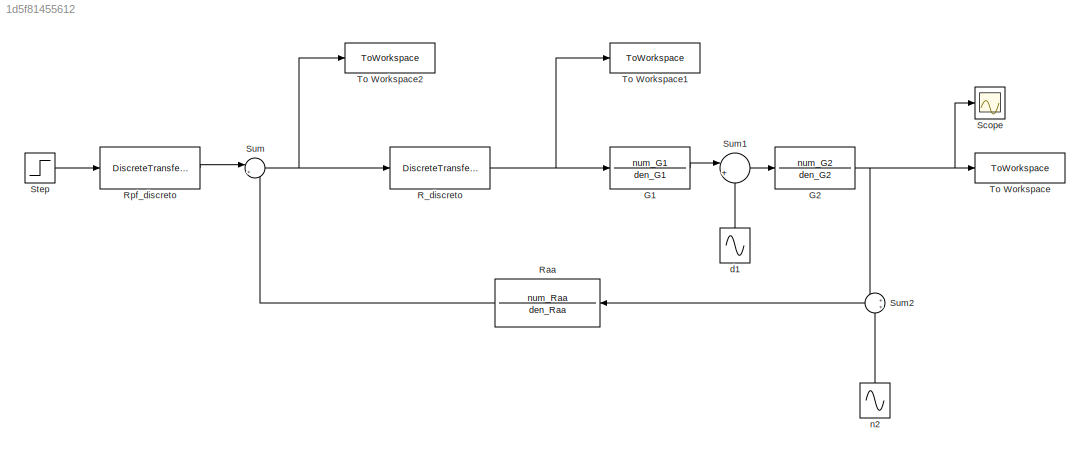
MODEL slx_1d5f81455612
KIND model
CONFIG AbsTol = auto
CONFIG EnableMultiTasking = off
CONFIG FixedStep = auto
CONFIG MaxStep = auto
CONFIG MinStep = auto
CONFIG RelTol = 1e-3
CONFIG SampleTimeConstraint = Unconstrained
CONFIG Solver = VariableStepAuto
CONFIG SolverName = VariableStepAuto
CONFIG StartTime = 0.0
CONFIG StopTime = 10
BLOCK [TransferFcn] G1 
  Denominator = den_G1
  Numerator = num_G1
BLOCK [TransferFcn] G2
  Denominator = den_G2
  Numerator = num_G2
BLOCK [DiscreteTransferFcn] R_discreto 
  Denominator = DENd
  InputPortMap = u0
  Numerator = NUMd
  Ports = [1, 1]
  SampleTime = Ts
BLOCK [TransferFcn] Raa
  Denominator = den_Raa
  Numerator = num_Raa
BLOCK [DiscreteTransferFcn] Rpf_discreto 
  Denominator = DENpf
  InputPortMap = u0
  Numerator = NUMpf
  Ports = [1, 1]
  SampleTime = Ts
BLOCK [Scope] Scope
  Floating = off
  NumInputPorts = 1
  Ports = [1]
  ScopeSpecificationString = Simulink.scopes.TimeScopeBlockCfg('CurrentConfiguration', extmgr.ConfigurationSet(extmgr.Configuration('Core','General UI',true),extmgr.Configuration('Core','Source UI',true),extmgr.Configuration('Sources','WiredSimulink',true),extmgr.Configuration('Visuals','Time Domain',true,'SerializedDisplays',{struct('MinYLimReal','-0.19212','MaxYLimReal','1.7291','YLabelReal','','MinYLimMag','0.00000','MaxYL...<+1345ch>
BLOCK [Step] Step
  After = 1.5
  SampleTime = 0
  Time = 0
BLOCK [Sum] Sum
  IconShape = round
  InputSameDT = off
  Inputs = |+-
  OutDataTypeStr = Inherit: Inherit via internal rule
  Ports = [2, 1]
  SaturateOnIntegerOverflow = off
BLOCK [Sum] Sum1
  IconShape = round
  InputSameDT = off
  Inputs = |++
  OutDataTypeStr = Inherit: Inherit via internal rule
  Ports = [2, 1]
  SaturateOnIntegerOverflow = off
BLOCK [Sum] Sum2
  IconShape = round
  InputSameDT = off
  OutDataTypeStr = Inherit: Inherit via internal rule
  Ports = [2, 1]
  SaturateOnIntegerOverflow = off
BLOCK [ToWorkspace] To Workspace
  MaxDataPoints = inf
  Ports = [1]
  SampleTime = -1
  SaveFormat = Timeseries
  VariableName = yd
BLOCK [ToWorkspace] To Workspace1
  MaxDataPoints = inf
  Ports = [1]
  SampleTime = -1
  SaveFormat = Timeseries
  VariableName = ud
BLOCK [ToWorkspace] To Workspace2
  MaxDataPoints = inf
  Ports = [1]
  SampleTime = -1
  SaveFormat = Timeseries
  VariableName = ed
BLOCK [Sin] d1
  Amplitude = 3
  Ports = [0, 1]
  SampleTime = 0
BLOCK [Sin] n2
  Amplitude = 0.02
  Frequency = 8000
  Ports = [0, 1]
  SampleTime = 0
LINE G1 :1 -> Sum1:1
NET G2:1 -> Scope:1, Sum2:1, To Workspace:1
NET R_discreto :1 -> G1 :1, To Workspace1:1
LINE Raa:1 -> Sum:2
LINE Rpf_discreto :1 -> Sum:1
LINE Step:1 -> Rpf_discreto :1
LINE Sum1:1 -> G2:1
LINE Sum2:1 -> Raa:1
NET Sum:1 -> R_discreto :1, To Workspace2:1
LINE d1:1 -> Sum1:2
LINE n2:1 -> Sum2:2
note: NET lines group one-source signal fan-out (src -> all destinations, sorted); 1:1 wires keep LINE
